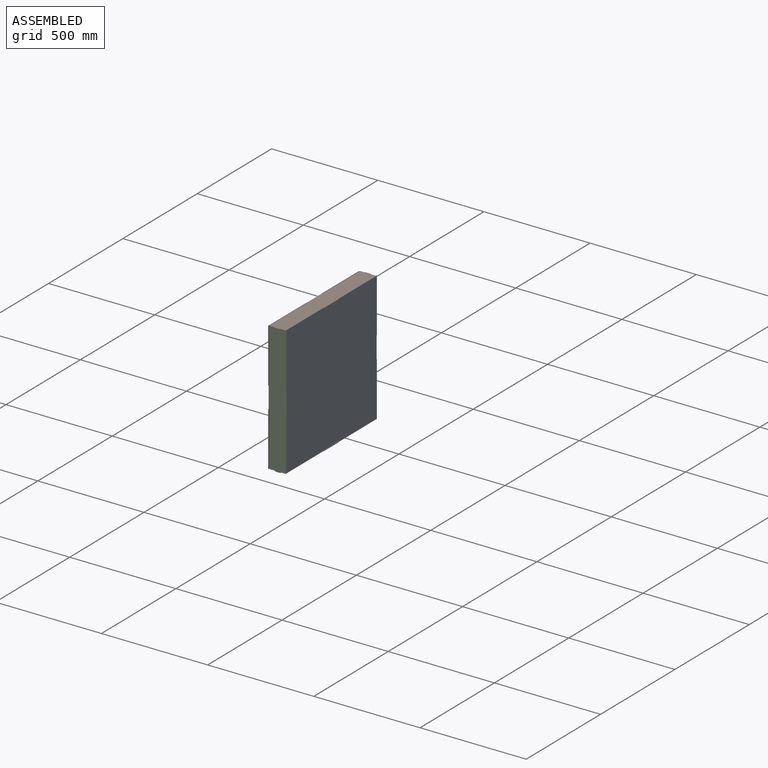
[diagram: assembled view]
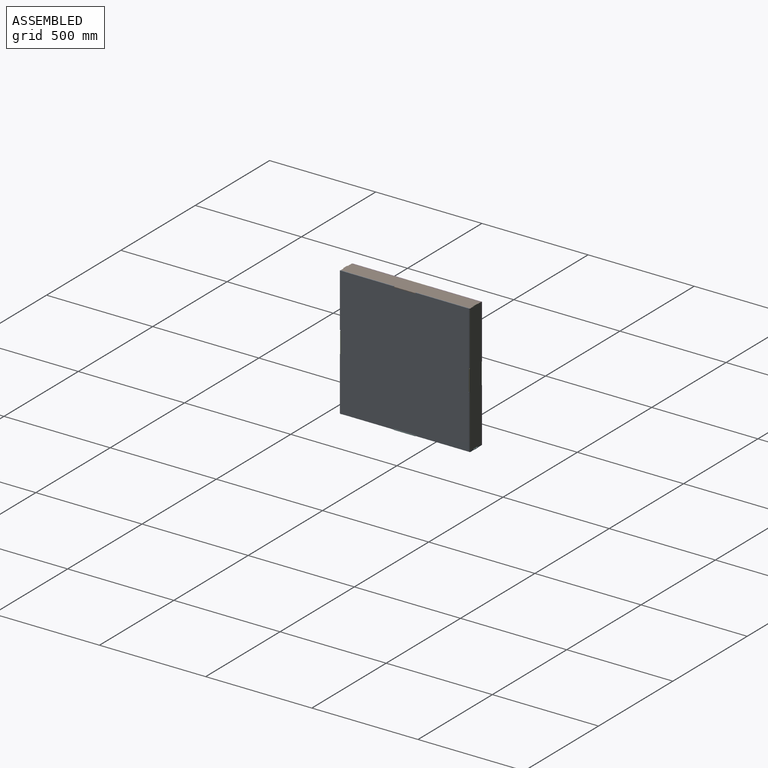
[diagram: assembled view, second angle]
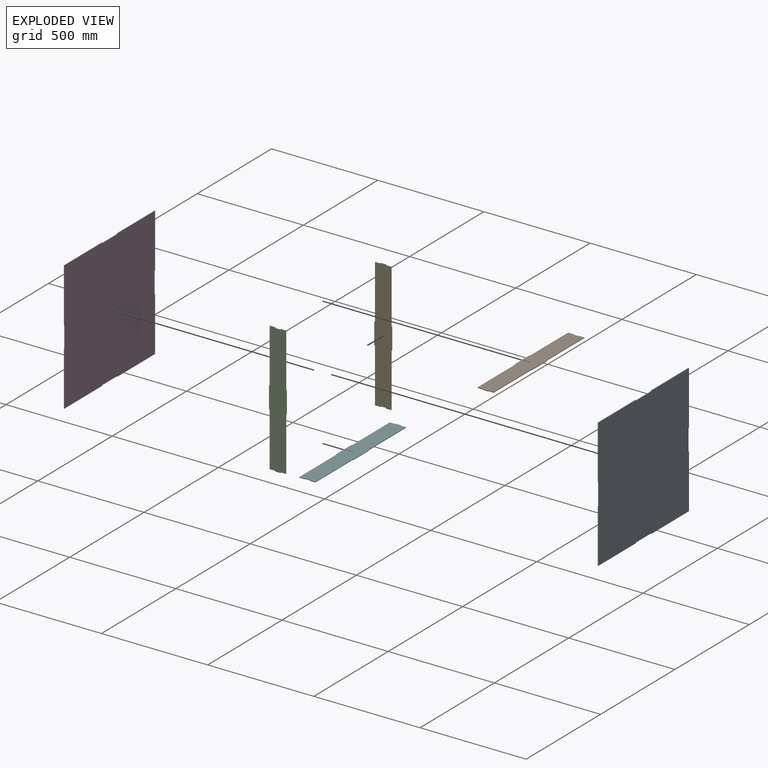
[diagram: exploded view]
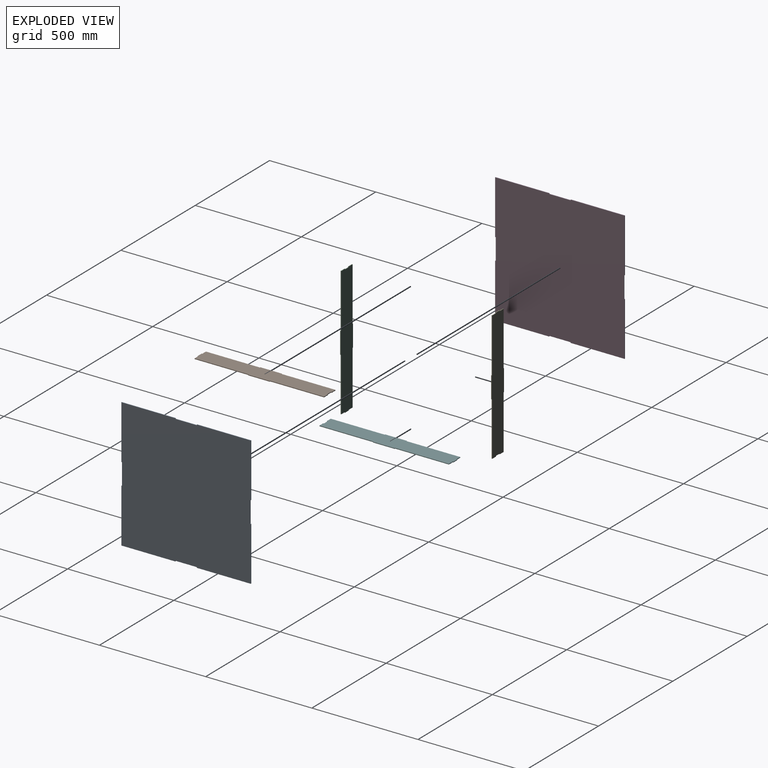
[diagram: exploded view, second angle]
ASSEMBLY  parts=6 mates=5
PART A: 22 faces, bbox 609.6x609.6x3 mm
  f0: plane 3x3mm, normal (1,0,0), area 9mm2, adj f1,f19,f20,f21
  f1: plane 254x3mm, normal (0,1,0), area 762mm2, adj f0,f2,f20,f21
  f2: plane 254x3mm, normal (-1,0,0), area 762mm2, adj f1,f3,f20,f21
  f3: plane 3x3mm, normal (0,-1,0), area 9mm2, adj f2,f4,f20,f21
  f4: plane 101.6x3mm, normal (-1,0,0), area 304.8mm2, adj f3,f5,f20,f21
  f5: plane 3x3mm, normal (0,1,0), area 9mm2, adj f4,f6,f20,f21
  f6: plane 254x3mm, normal (-1,0,0), area 762mm2, adj f5,f7,f20,f21
  f7: plane 254x3mm, normal (0,-1,0), area 762mm2, adj f6,f8,f20,f21
  f8: plane 3x3mm, normal (1,0,0), area 9mm2, adj f7,f9,f20,f21
  f9: plane 101.6x3mm, normal (0,-1,0), area 304.8mm2, adj f8,f10,f20,f21
  f10: plane 3x3mm, normal (-1,0,0), area 9mm2, adj f9,f11,f20,f21
  f11: plane 254x3mm, normal (0,-1,0), area 762mm2, adj f10,f12,f20,f21
  f12: plane 254x3mm, normal (1,0,0), area 762mm2, adj f11,f13,f20,f21
  f13: plane 3x3mm, normal (0,1,0), area 9mm2, adj f12,f14,f20,f21
  f14: plane 101.6x3mm, normal (1,0,0), area 304.8mm2, adj f13,f15,f20,f21
  f15: plane 3x3mm, normal (0,-1,0), area 9mm2, adj f14,f16,f20,f21
  f16: plane 254x3mm, normal (1,0,0), area 762mm2, adj f15,f17,f20,f21
  f17: plane 254x3mm, normal (0,1,0), area 762mm2, adj f16,f18,f20,f21
  f18: plane 3x3mm, normal (-1,0,0), area 9mm2, adj f17,f19,f20,f21
  f19: plane 101.6x3mm, normal (0,1,0), area 304.8mm2, adj f0,f18,f20,f21
  f20: plane 609.6x609.6mm, normal (0,0,1), area 370393mm2, adj f0,f1,f2,f3,f4,f5,f6,f7
  f21: plane 609.6x609.6mm, normal (0,0,-1), area 370393mm2, adj f0,f1,f2,f3,f4,f5,f6,f7
PART B: 22 faces, bbox 82.2x612.6x3 mm
  f0: plane 254x3mm, normal (-1,0,0), area 762mm2, adj f1,f19,f20,f21
  f1: plane 25.4x3mm, normal (0,-1,0), area 76.2mm2, adj f0,f2,f20,f21
  f2: plane 3x3mm, normal (1,0,0), area 9mm2, adj f1,f3,f20,f21
  f3: plane 25.4x3mm, normal (0,-1,0), area 76.2mm2, adj f2,f4,f20,f21
  f4: plane 3x3mm, normal (-1,0,0), area 9mm2, adj f3,f5,f20,f21
  f5: plane 25.4x3mm, normal (0,-1,0), area 76.2mm2, adj f4,f6,f20,f21
  f6: plane 254x3mm, normal (1,0,0), area 762mm2, adj f5,f7,f20,f21
  f7: plane 3x3mm, normal (0,-1,0), area 9mm2, adj f6,f8,f20,f21
  f8: plane 101.6x3mm, normal (1,0,0), area 304.8mm2, adj f7,f9,f20,f21
  f9: plane 3x3mm, normal (0,1,0), area 9mm2, adj f8,f10,f20,f21
  f10: plane 254x3mm, normal (1,0,0), area 762mm2, adj f9,f11,f20,f21
  f11: plane 25.4x3mm, normal (0,1,0), area 76.2mm2, adj f10,f12,f20,f21
  f12: plane 3x3mm, normal (1,0,0), area 9mm2, adj f11,f13,f20,f21
  f13: plane 25.4x3mm, normal (0,1,0), area 76.2mm2, adj f12,f14,f20,f21
  f14: plane 3x3mm, normal (-1,0,0), area 9mm2, adj f13,f15,f20,f21
  f15: plane 25.4x3mm, normal (0,1,0), area 76.2mm2, adj f14,f16,f20,f21
  f16: plane 254x3mm, normal (-1,0,0), area 762mm2, adj f15,f17,f20,f21
  f17: plane 3x3mm, normal (0,1,0), area 9mm2, adj f16,f18,f20,f21
  f18: plane 101.6x3mm, normal (-1,0,0), area 304.8mm2, adj f17,f19,f20,f21
  f19: plane 3x3mm, normal (0,-1,0), area 9mm2, adj f0,f18,f20,f21
  f20: plane 612.6x82.2mm, normal (0,0,1), area 47061.1mm2, adj f0,f1,f2,f3,f4,f5,f6,f7
  f21: plane 612.6x82.2mm, normal (0,0,-1), area 47061.1mm2, adj f0,f1,f2,f3,f4,f5,f6,f7
PART C: same geometry as B
PART D: same geometry as A
PART E: same geometry as B
PART F: same geometry as B
PLACE A rot(axis=(-0.71,0,0.71),180deg) t=(-1229.68,375.58,-226.88)mm
PLACE B rot(axis=(0,0,1),180deg) t=(-1270.78,375.58,73.42)mm
PLACE C rot(axis=(0,-0.71,0.71),180deg) t=(-1270.78,75.28,-229.88)mm
PLACE D rot(axis=(0.58,-0.58,-0.58),120deg) t=(-1311.88,375.58,-229.88)mm
PLACE E rot(axis=(1,0,0),90deg) t=(-1272.28,680.38,-229.88)mm
PLACE F t=(-1270.78,375.58,-533.18)mm
MATE fastened A.f21 <-> B.f18  axis (1,0,0) through (-1229.68,375.58,74.92)mm
MATE fastened D.f21 <-> C.f8  axis (1,0,0) through (-1311.88,73.78,-229.88)mm
MATE fastened B.f8 <-> D.f21  axis (-1,0,0) through (-1311.88,375.58,74.92)mm
MATE fastened D.f4 <-> E.f20  axis (0,1,0) through (-1313.38,677.38,-229.88)mm
MATE fastened D.f21 <-> F.f18  axis (1,0,0) through (-1311.88,375.58,-531.68)mm
